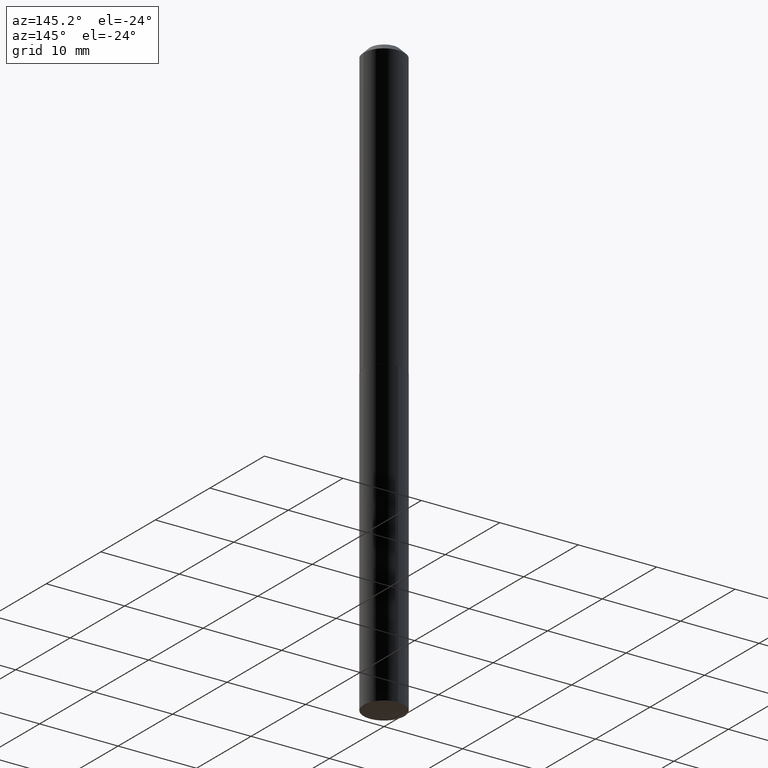
[diagram: clean part render]
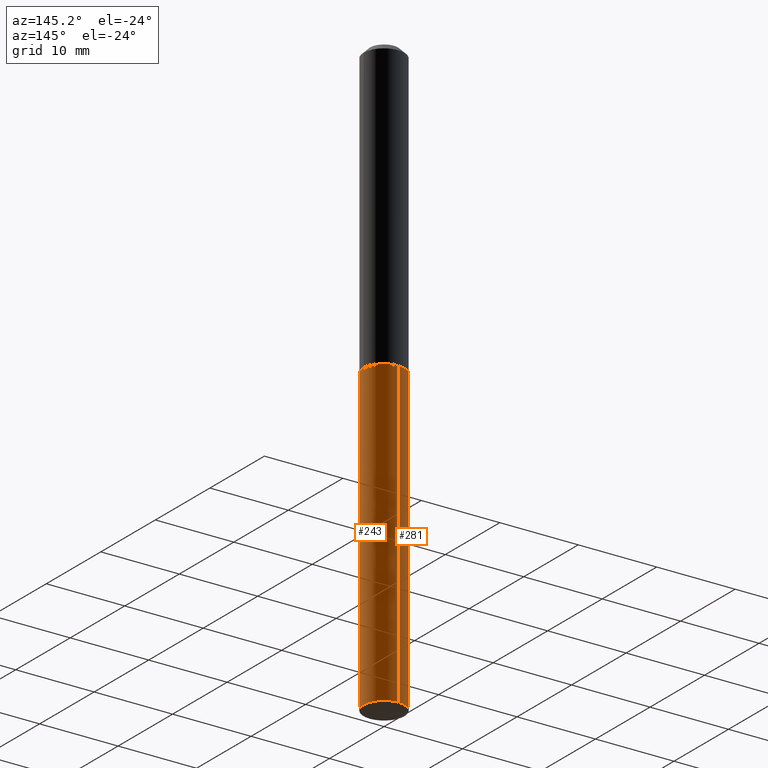
[diagram: same view with one multi-face feature highlighted, each face labeled with its STEP entity id]
A machine part, auxiliary view. The highlighted faces form ONE feature: a constant-radius fillet chain: 2 tangent blend faces with common blend radius 2.5908 mm. The faces share edges in the B-rep.
Their STEP definitions:
[1] entity #243 (Cylinder):
#20 = CARTESIAN_POINT ( 'NONE',  ( -7.122621931239635953E-16, -0.1020000000000050727, -1.453999999999999737 ) ) ;
#25 = DIRECTION ( 'NONE',  ( -6.982962677686266711E-15, -1.000000000000000000, 2.678282346729670008E-15 ) ) ;
#26 = VERTEX_POINT ( 'NONE', #68 ) ;
#28 = ORIENTED_EDGE ( 'NONE', *, *, #265, .T. ) ;
#54 = CIRCLE ( 'NONE', #332, 0.1019999999999999934 ) ;
#61 = VERTEX_POINT ( 'NONE', #357 ) ;
#67 = EDGE_CURVE ( 'NONE', #61, #335, #118, .T. ) ;
#68 = CARTESIAN_POINT ( 'NONE',  ( 7.247535904753751127E-16, 0.1019999999999949281, -1.454000000000000403 ) ) ;
#77 = FACE_OUTER_BOUND ( 'NONE', #185, .T. ) ;
#90 = DIRECTION ( 'NONE',  ( -2.433171477205870271E-29, 3.509091813861953819E-15, 1.000000000000000000 ) ) ;
#92 = VECTOR ( 'NONE', #248, 39.37007874015748143 ) ;
#108 = CARTESIAN_POINT ( 'NONE',  ( 3.555711644193189020E-29, -5.076613866677933538E-15, -1.454000000000000181 ) ) ;
#112 = DIRECTION ( 'NONE',  ( -2.433171477205870271E-29, 3.509091813861953819E-15, 1.000000000000000000 ) ) ;
#118 = CIRCLE ( 'NONE', #165, 0.1020000000000000351 ) ;
#141 = LINE ( 'NONE', #184, #300 ) ;
#165 = AXIS2_PLACEMENT_3D ( 'NONE', #298, #90, #293 ) ;
#184 = CARTESIAN_POINT ( 'NONE',  ( 7.247535904753377404E-16, 0.1019999999999949419, -1.454000000000000403 ) ) ;
#185 = EDGE_LOOP ( 'NONE', ( #295, #28, #272, #307 ) ) ;
#196 = CARTESIAN_POINT ( 'NONE',  ( 3.555711644193189020E-29, -5.076613866677933538E-15, -1.454000000000000181 ) ) ;
#203 = DIRECTION ( 'NONE',  ( -6.982962677686265922E-15, -1.000000000000000000, 2.678282346729669219E-15 ) ) ;
#218 = VERTEX_POINT ( 'NONE', #20 ) ;
#221 = EDGE_CURVE ( 'NONE', #218, #26, #54, .T. ) ;
#234 = DIRECTION ( 'NONE',  ( -2.433171477205870271E-29, 3.509091813861953819E-15, 1.000000000000000000 ) ) ;
#238 = AXIS2_PLACEMENT_3D ( 'NONE', #196, #234, #203 ) ;
#243 = ADVANCED_FACE ( 'NONE', ( #77 ), #354, .T. ) ;
#248 = DIRECTION ( 'NONE',  ( -2.433171477205870271E-29, 3.509091813861953819E-15, 1.000000000000000000 ) ) ;
#265 = EDGE_CURVE ( 'NONE', #335, #26, #141, .T. ) ;
#272 = ORIENTED_EDGE ( 'NONE', *, *, #221, .F. ) ;
#286 = EDGE_CURVE ( 'NONE', #61, #218, #360, .T. ) ;
#293 = DIRECTION ( 'NONE',  ( -6.982962677686265922E-15, -1.000000000000000000, 5.356564693459337649E-15 ) ) ;
#295 = ORIENTED_EDGE ( 'NONE', *, *, #67, .T. ) ;
#298 = CARTESIAN_POINT ( 'NONE',  ( 7.250894182052361242E-29, -1.040576346250403292E-14, -2.972669182372025265 ) ) ;
#300 = VECTOR ( 'NONE', #366, 39.37007874015748143 ) ;
#305 = CARTESIAN_POINT ( 'NONE',  ( -7.122621931239636939E-16, -0.1020000000000050866, -1.453999999999999737 ) ) ;
#307 = ORIENTED_EDGE ( 'NONE', *, *, #286, .F. ) ;
#332 = AXIS2_PLACEMENT_3D ( 'NONE', #108, #112, #25 ) ;
#335 = VERTEX_POINT ( 'NONE', #345 ) ;
#345 = CARTESIAN_POINT ( 'NONE',  ( 7.247535904753748169E-16, 0.1019999999999896129, -2.972669182372025709 ) ) ;
#354 = CYLINDRICAL_SURFACE ( 'NONE', #238, 0.1020000000000000212 ) ;
#357 = CARTESIAN_POINT ( 'NONE',  ( -7.122621931239267160E-16, -0.1020000000000104157, -2.972669182372024821 ) ) ;
#360 = LINE ( 'NONE', #305, #92 ) ;
#366 = DIRECTION ( 'NONE',  ( -2.433171477205870271E-29, 3.509091813861953819E-15, 1.000000000000000000 ) ) ;
[2] entity #281 (Cylinder):
#3 = CARTESIAN_POINT ( 'NONE',  ( 3.555711644193189020E-29, -5.076613866677933538E-15, -1.454000000000000181 ) ) ;
#20 = CARTESIAN_POINT ( 'NONE',  ( -7.122621931239635953E-16, -0.1020000000000050727, -1.453999999999999737 ) ) ;
#26 = VERTEX_POINT ( 'NONE', #68 ) ;
#38 = AXIS2_PLACEMENT_3D ( 'NONE', #156, #51, #45 ) ;
#40 = AXIS2_PLACEMENT_3D ( 'NONE', #3, #363, #144 ) ;
#45 = DIRECTION ( 'NONE',  ( -6.982962677686265922E-15, -1.000000000000000000, 5.356564693459337649E-15 ) ) ;
#46 = EDGE_CURVE ( 'NONE', #335, #61, #205, .T. ) ;
#51 = DIRECTION ( 'NONE',  ( -2.433171477205870271E-29, 3.509091813861953819E-15, 1.000000000000000000 ) ) ;
#58 = ORIENTED_EDGE ( 'NONE', *, *, #286, .T. ) ;
#61 = VERTEX_POINT ( 'NONE', #357 ) ;
#66 = CYLINDRICAL_SURFACE ( 'NONE', #40, 0.1020000000000000212 ) ;
#68 = CARTESIAN_POINT ( 'NONE',  ( 7.247535904753751127E-16, 0.1019999999999949281, -1.454000000000000403 ) ) ;
#75 = CIRCLE ( 'NONE', #106, 0.1019999999999999934 ) ;
#92 = VECTOR ( 'NONE', #248, 39.37007874015748143 ) ;
#106 = AXIS2_PLACEMENT_3D ( 'NONE', #301, #169, #296 ) ;
#141 = LINE ( 'NONE', #184, #300 ) ;
#144 = DIRECTION ( 'NONE',  ( -6.982962677686265922E-15, -1.000000000000000000, 2.678282346729669219E-15 ) ) ;
#153 = ORIENTED_EDGE ( 'NONE', *, *, #46, .T. ) ;
#156 = CARTESIAN_POINT ( 'NONE',  ( 7.250894182052361242E-29, -1.040576346250403292E-14, -2.972669182372025265 ) ) ;
#169 = DIRECTION ( 'NONE',  ( -2.433171477205870271E-29, 3.509091813861953819E-15, 1.000000000000000000 ) ) ;
#170 = EDGE_LOOP ( 'NONE', ( #247, #153, #58, #277 ) ) ;
#184 = CARTESIAN_POINT ( 'NONE',  ( 7.247535904753377404E-16, 0.1019999999999949419, -1.454000000000000403 ) ) ;
#205 = CIRCLE ( 'NONE', #38, 0.1020000000000000351 ) ;
#213 = EDGE_CURVE ( 'NONE', #26, #218, #75, .T. ) ;
#218 = VERTEX_POINT ( 'NONE', #20 ) ;
#247 = ORIENTED_EDGE ( 'NONE', *, *, #265, .F. ) ;
#248 = DIRECTION ( 'NONE',  ( -2.433171477205870271E-29, 3.509091813861953819E-15, 1.000000000000000000 ) ) ;
#265 = EDGE_CURVE ( 'NONE', #335, #26, #141, .T. ) ;
#277 = ORIENTED_EDGE ( 'NONE', *, *, #213, .F. ) ;
#281 = ADVANCED_FACE ( 'NONE', ( #310 ), #66, .T. ) ;
#286 = EDGE_CURVE ( 'NONE', #61, #218, #360, .T. ) ;
#296 = DIRECTION ( 'NONE',  ( -6.982962677686266711E-15, -1.000000000000000000, 2.678282346729670008E-15 ) ) ;
#300 = VECTOR ( 'NONE', #366, 39.37007874015748143 ) ;
#301 = CARTESIAN_POINT ( 'NONE',  ( 3.555711644193189020E-29, -5.076613866677933538E-15, -1.454000000000000181 ) ) ;
#305 = CARTESIAN_POINT ( 'NONE',  ( -7.122621931239636939E-16, -0.1020000000000050866, -1.453999999999999737 ) ) ;
#310 = FACE_OUTER_BOUND ( 'NONE', #170, .T. ) ;
#335 = VERTEX_POINT ( 'NONE', #345 ) ;
#345 = CARTESIAN_POINT ( 'NONE',  ( 7.247535904753748169E-16, 0.1019999999999896129, -2.972669182372025709 ) ) ;
#357 = CARTESIAN_POINT ( 'NONE',  ( -7.122621931239267160E-16, -0.1020000000000104157, -2.972669182372024821 ) ) ;
#360 = LINE ( 'NONE', #305, #92 ) ;
#363 = DIRECTION ( 'NONE',  ( -2.433171477205870271E-29, 3.509091813861953819E-15, 1.000000000000000000 ) ) ;
#366 = DIRECTION ( 'NONE',  ( -2.433171477205870271E-29, 3.509091813861953819E-15, 1.000000000000000000 ) ) ;